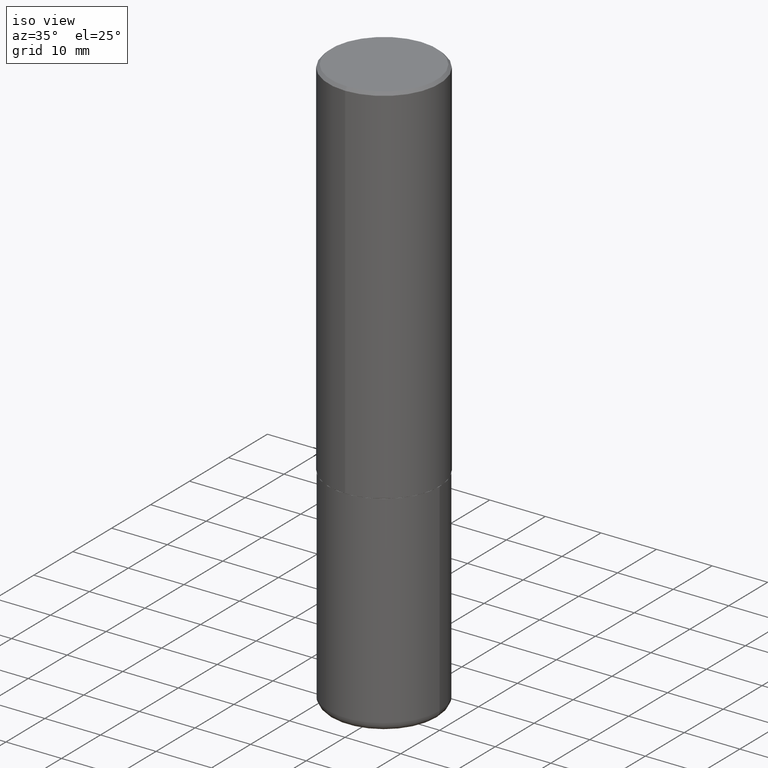
[diagram: clean part render]
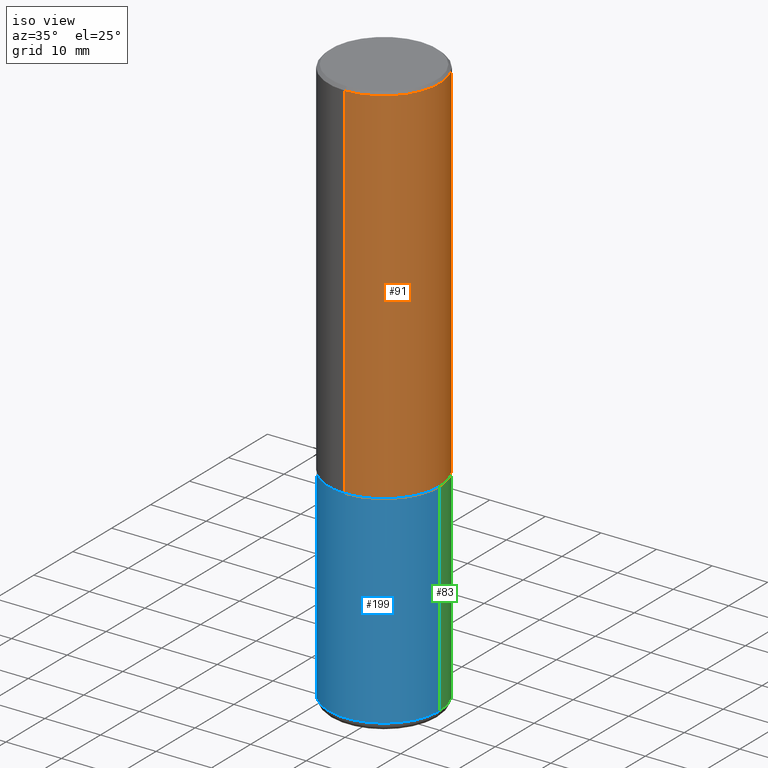
[diagram: same view with three faces highlighted in distinct colors, each labeled with its STEP entity id]
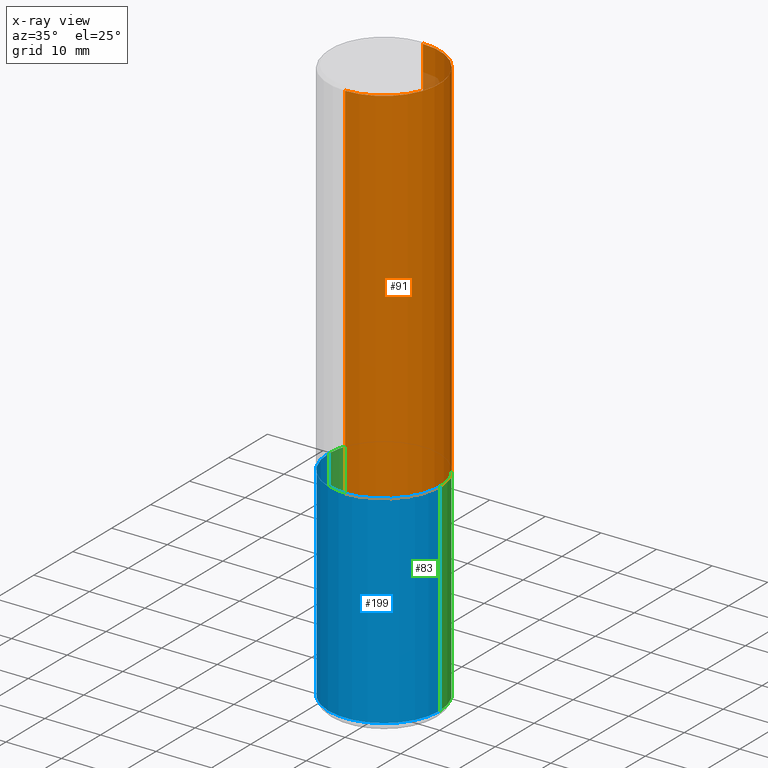
[diagram: x-ray of the same camera — body ghosted, the three highlighted faces saturated]
A machine part, iso view with three faces highlighted in distinct colors.
The next image is the same camera in x-ray (body ghosted, the three faces saturated) — at least one of them is partly hidden behind the body in this view.
Their STEP definitions:

[orange] entity #91 — the highlighted cylindrical surface (partial cylindrical patch) has radius 10 mm, axis along (-0, 0, 1).
#9 = CARTESIAN_POINT ( 'NONE',  ( -2.700978061722650858E-15, -0.3937000000000000499, -0.01999999999999870978 ) ) ;
#16 = FACE_OUTER_BOUND ( 'NONE', #224, .T. ) ;
#21 = EDGE_CURVE ( 'NONE', #269, #358, #180, .T. ) ;
#22 = AXIS2_PLACEMENT_3D ( 'NONE', #113, #78, #208 ) ;
#39 = VERTEX_POINT ( 'NONE', #9 ) ;
#52 = VECTOR ( 'NONE', #313, 39.37007874015748143 ) ;
#55 = EDGE_CURVE ( 'NONE', #39, #358, #209, .T. ) ;
#57 = ORIENTED_EDGE ( 'NONE', *, *, #281, .T. ) ;
#78 = DIRECTION ( 'NONE',  ( -2.445303543982764697E-29, 3.491718003723082520E-15, 1.000000000000000000 ) ) ;
#91 = ADVANCED_FACE ( 'NONE', ( #16 ), #268, .T. ) ;
#113 = CARTESIAN_POINT ( 'NONE',  ( 0.000000000000000000, 0.000000000000000000, 0.000000000000000000 ) ) ;
#121 = AXIS2_PLACEMENT_3D ( 'NONE', #336, #399, #362 ) ;
#128 = DIRECTION ( 'NONE',  ( -6.982962677686265922E-15, -1.000000000000000000, 4.163344669033672479E-15 ) ) ;
#144 = EDGE_CURVE ( 'NONE', #376, #39, #321, .T. ) ;
#164 = CARTESIAN_POINT ( 'NONE',  ( 2.749192406205082822E-15, 0.3936999999999998834, -0.02000000000000146105 ) ) ;
#180 = LINE ( 'NONE', #241, #304 ) ;
#187 = AXIS2_PLACEMENT_3D ( 'NONE', #318, #347, #128 ) ;
#208 = DIRECTION ( 'NONE',  ( -6.982962677686265133E-15, -1.000000000000000000, 3.491718003723082520E-15 ) ) ;
#209 = CIRCLE ( 'NONE', #121, 0.3936999999999999389 ) ;
#223 = CARTESIAN_POINT ( 'NONE',  ( -2.749192406205083217E-15, -0.3937000000000001054, 1.374689378065777917E-15 ) ) ;
#224 = EDGE_LOOP ( 'NONE', ( #57, #343, #317, #319 ) ) ;
#241 = CARTESIAN_POINT ( 'NONE',  ( 2.797406750687514786E-15, 0.3937000000000001054, -1.374689378065777917E-15 ) ) ;
#268 = CYLINDRICAL_SURFACE ( 'NONE', #22, 0.3937000000000001054 ) ;
#269 = VERTEX_POINT ( 'NONE', #407 ) ;
#281 = EDGE_CURVE ( 'NONE', #376, #269, #378, .T. ) ;
#303 = DIRECTION ( 'NONE',  ( -2.445303543982764697E-29, 3.491718003723082520E-15, 1.000000000000000000 ) ) ;
#304 = VECTOR ( 'NONE', #303, 39.37007874015748143 ) ;
#313 = DIRECTION ( 'NONE',  ( -2.445303543982764697E-29, 3.491718003723082520E-15, 1.000000000000000000 ) ) ;
#317 = ORIENTED_EDGE ( 'NONE', *, *, #55, .F. ) ;
#318 = CARTESIAN_POINT ( 'NONE',  ( 6.351431425140834368E-29, -9.069388342870335822E-15, -2.597400000000000375 ) ) ;
#319 = ORIENTED_EDGE ( 'NONE', *, *, #144, .F. ) ;
#320 = CARTESIAN_POINT ( 'NONE',  ( -2.749192406205021291E-15, -0.3937000000000093758, -2.597399999999999043 ) ) ;
#321 = LINE ( 'NONE', #223, #52 ) ;
#336 = CARTESIAN_POINT ( 'NONE',  ( 4.890607087965551148E-31, -6.983436007446194572E-17, -0.02000000000000008715 ) ) ;
#343 = ORIENTED_EDGE ( 'NONE', *, *, #21, .T. ) ;
#347 = DIRECTION ( 'NONE',  ( -2.445303543982764697E-29, 3.491718003723082520E-15, 1.000000000000000000 ) ) ;
#358 = VERTEX_POINT ( 'NONE', #164 ) ;
#362 = DIRECTION ( 'NONE',  ( -6.982962677686265922E-15, -1.000000000000000000, 3.491137977679280212E-15 ) ) ;
#376 = VERTEX_POINT ( 'NONE', #320 ) ;
#378 = CIRCLE ( 'NONE', #187, 0.3937000000000002720 ) ;
#399 = DIRECTION ( 'NONE',  ( -2.445303543982764697E-29, 3.491718003723082520E-15, 1.000000000000000000 ) ) ;
#407 = CARTESIAN_POINT ( 'NONE',  ( 2.797406750687547919E-15, 0.3936999999999912792, -2.597400000000002152 ) ) ;

[blue] entity #199 — the highlighted cylindrical surface (partial cylindrical patch) has radius 10 mm, axis along (-0, 0, 1).
#8 = LINE ( 'NONE', #12, #186 ) ;
#12 = CARTESIAN_POINT ( 'NONE',  ( -0.3937000000000000499, 2.797406750687514786E-15, -1.936584745033356735E-29 ) ) ;
#19 = DIRECTION ( 'NONE',  ( -2.445468806185136597E-29, 3.491481338843145583E-15, 1.000000000000000000 ) ) ;
#41 = EDGE_CURVE ( 'NONE', #215, #200, #395, .T. ) ;
#50 = CARTESIAN_POINT ( 'NONE',  ( 0.3937000000000001054, -1.683627216403552499E-14, -4.034700000000000841 ) ) ;
#64 = LINE ( 'NONE', #190, #110 ) ;
#102 = CARTESIAN_POINT ( 'NONE',  ( 6.354306145991459756E-29, -9.072265110850031044E-15, -2.598400000000000265 ) ) ;
#105 = DIRECTION ( 'NONE',  ( -2.445468806185136877E-29, 3.491481338843145188E-15, 1.000000000000000000 ) ) ;
#109 = ORIENTED_EDGE ( 'NONE', *, *, #41, .T. ) ;
#110 = VECTOR ( 'NONE', #251, 39.37007874015748143 ) ;
#137 = DIRECTION ( 'NONE',  ( 1.000000000000000000, -6.982962677686267499E-15, 0.000000000000000000 ) ) ;
#139 = CARTESIAN_POINT ( 'NONE',  ( -0.3937000000000001054, -1.128967300714292462E-14, -4.034700000000000841 ) ) ;
#141 = CYLINDRICAL_SURFACE ( 'NONE', #218, 0.3937000000000000499 ) ;
#165 = FACE_OUTER_BOUND ( 'NONE', #275, .T. ) ;
#166 = VERTEX_POINT ( 'NONE', #226 ) ;
#184 = ORIENTED_EDGE ( 'NONE', *, *, #408, .F. ) ;
#186 = VECTOR ( 'NONE', #105, 39.37007874015748143 ) ;
#190 = CARTESIAN_POINT ( 'NONE',  ( 0.3937000000000000499, -2.749192406205083217E-15, 1.919750796630860172E-29 ) ) ;
#193 = CIRCLE ( 'NONE', #289, 0.3937000000000000499 ) ;
#194 = ORIENTED_EDGE ( 'NONE', *, *, #344, .T. ) ;
#198 = DIRECTION ( 'NONE',  ( 1.000000000000000000, -6.982962677686267499E-15, 0.000000000000000000 ) ) ;
#199 = ADVANCED_FACE ( 'NONE', ( #165 ), #141, .T. ) ;
#200 = VERTEX_POINT ( 'NONE', #50 ) ;
#207 = CARTESIAN_POINT ( 'NONE',  ( 9.866732992315171563E-29, -1.408707975783044020E-14, -4.034700000000000841 ) ) ;
#212 = AXIS2_PLACEMENT_3D ( 'NONE', #207, #19, #137 ) ;
#214 = EDGE_CURVE ( 'NONE', #215, #166, #8, .T. ) ;
#215 = VERTEX_POINT ( 'NONE', #139 ) ;
#218 = AXIS2_PLACEMENT_3D ( 'NONE', #368, #235, #299 ) ;
#226 = CARTESIAN_POINT ( 'NONE',  ( -0.3937000000000000499, -8.782265683652721625E-15, -2.598400000000000265 ) ) ;
#230 = DIRECTION ( 'NONE',  ( -2.445468806185136597E-29, 3.491481338843145583E-15, 1.000000000000000000 ) ) ;
#235 = DIRECTION ( 'NONE',  ( -2.445468806185136597E-29, 3.491481338843145583E-15, 1.000000000000000000 ) ) ;
#236 = ORIENTED_EDGE ( 'NONE', *, *, #214, .F. ) ;
#251 = DIRECTION ( 'NONE',  ( -2.445468806185136877E-29, 3.491481338843145188E-15, 1.000000000000000000 ) ) ;
#260 = VERTEX_POINT ( 'NONE', #377 ) ;
#275 = EDGE_LOOP ( 'NONE', ( #236, #109, #194, #184 ) ) ;
#289 = AXIS2_PLACEMENT_3D ( 'NONE', #102, #230, #198 ) ;
#299 = DIRECTION ( 'NONE',  ( 1.000000000000000000, -6.982962677686265922E-15, 4.876176775795935793E-29 ) ) ;
#344 = EDGE_CURVE ( 'NONE', #200, #260, #64, .T. ) ;
#368 = CARTESIAN_POINT ( 'NONE',  ( 0.000000000000000000, 0.000000000000000000, 0.000000000000000000 ) ) ;
#377 = CARTESIAN_POINT ( 'NONE',  ( 0.3937000000000000499, -1.182145751705511584E-14, -2.598400000000000265 ) ) ;
#395 = CIRCLE ( 'NONE', #212, 0.3937000000000000499 ) ;
#408 = EDGE_CURVE ( 'NONE', #166, #260, #193, .T. ) ;

[green] entity #83 — the highlighted cylindrical surface (partial cylindrical patch) has radius 10 mm, axis along (-0, 0, 1).
#3 = CARTESIAN_POINT ( 'NONE',  ( 6.354306145991459756E-29, -9.072265110850031044E-15, -2.598400000000000265 ) ) ;
#8 = LINE ( 'NONE', #12, #186 ) ;
#12 = CARTESIAN_POINT ( 'NONE',  ( -0.3937000000000000499, 2.797406750687514786E-15, -1.936584745033356735E-29 ) ) ;
#44 = DIRECTION ( 'NONE',  ( -2.445468806185136597E-29, 3.491481338843145583E-15, 1.000000000000000000 ) ) ;
#50 = CARTESIAN_POINT ( 'NONE',  ( 0.3937000000000001054, -1.683627216403552499E-14, -4.034700000000000841 ) ) ;
#56 = AXIS2_PLACEMENT_3D ( 'NONE', #290, #265, #210 ) ;
#64 = LINE ( 'NONE', #190, #110 ) ;
#75 = ORIENTED_EDGE ( 'NONE', *, *, #344, .F. ) ;
#83 = ADVANCED_FACE ( 'NONE', ( #170 ), #400, .T. ) ;
#95 = ORIENTED_EDGE ( 'NONE', *, *, #214, .T. ) ;
#96 = ORIENTED_EDGE ( 'NONE', *, *, #405, .F. ) ;
#105 = DIRECTION ( 'NONE',  ( -2.445468806185136877E-29, 3.491481338843145188E-15, 1.000000000000000000 ) ) ;
#110 = VECTOR ( 'NONE', #251, 39.37007874015748143 ) ;
#139 = CARTESIAN_POINT ( 'NONE',  ( -0.3937000000000001054, -1.128967300714292462E-14, -4.034700000000000841 ) ) ;
#166 = VERTEX_POINT ( 'NONE', #226 ) ;
#167 = DIRECTION ( 'NONE',  ( 1.000000000000000000, -6.982962677686267499E-15, 0.000000000000000000 ) ) ;
#170 = FACE_OUTER_BOUND ( 'NONE', #253, .T. ) ;
#186 = VECTOR ( 'NONE', #105, 39.37007874015748143 ) ;
#190 = CARTESIAN_POINT ( 'NONE',  ( 0.3937000000000000499, -2.749192406205083217E-15, 1.919750796630860172E-29 ) ) ;
#200 = VERTEX_POINT ( 'NONE', #50 ) ;
#210 = DIRECTION ( 'NONE',  ( 1.000000000000000000, -6.982962677686265922E-15, 4.876176775795935793E-29 ) ) ;
#211 = EDGE_CURVE ( 'NONE', #200, #215, #326, .T. ) ;
#214 = EDGE_CURVE ( 'NONE', #215, #166, #8, .T. ) ;
#215 = VERTEX_POINT ( 'NONE', #139 ) ;
#226 = CARTESIAN_POINT ( 'NONE',  ( -0.3937000000000000499, -8.782265683652721625E-15, -2.598400000000000265 ) ) ;
#231 = CARTESIAN_POINT ( 'NONE',  ( 9.866732992315171563E-29, -1.408707975783044020E-14, -4.034700000000000841 ) ) ;
#247 = ORIENTED_EDGE ( 'NONE', *, *, #211, .T. ) ;
#251 = DIRECTION ( 'NONE',  ( -2.445468806185136877E-29, 3.491481338843145188E-15, 1.000000000000000000 ) ) ;
#253 = EDGE_LOOP ( 'NONE', ( #247, #95, #96, #75 ) ) ;
#260 = VERTEX_POINT ( 'NONE', #377 ) ;
#265 = DIRECTION ( 'NONE',  ( -2.445468806185136597E-29, 3.491481338843145583E-15, 1.000000000000000000 ) ) ;
#267 = CIRCLE ( 'NONE', #305, 0.3937000000000000499 ) ;
#290 = CARTESIAN_POINT ( 'NONE',  ( 0.000000000000000000, 0.000000000000000000, 0.000000000000000000 ) ) ;
#305 = AXIS2_PLACEMENT_3D ( 'NONE', #3, #367, #386 ) ;
#326 = CIRCLE ( 'NONE', #372, 0.3937000000000000499 ) ;
#344 = EDGE_CURVE ( 'NONE', #200, #260, #64, .T. ) ;
#367 = DIRECTION ( 'NONE',  ( -2.445468806185136597E-29, 3.491481338843145583E-15, 1.000000000000000000 ) ) ;
#372 = AXIS2_PLACEMENT_3D ( 'NONE', #231, #44, #167 ) ;
#377 = CARTESIAN_POINT ( 'NONE',  ( 0.3937000000000000499, -1.182145751705511584E-14, -2.598400000000000265 ) ) ;
#386 = DIRECTION ( 'NONE',  ( 1.000000000000000000, -6.982962677686267499E-15, 0.000000000000000000 ) ) ;
#400 = CYLINDRICAL_SURFACE ( 'NONE', #56, 0.3937000000000000499 ) ;
#405 = EDGE_CURVE ( 'NONE', #260, #166, #267, .T. ) ;